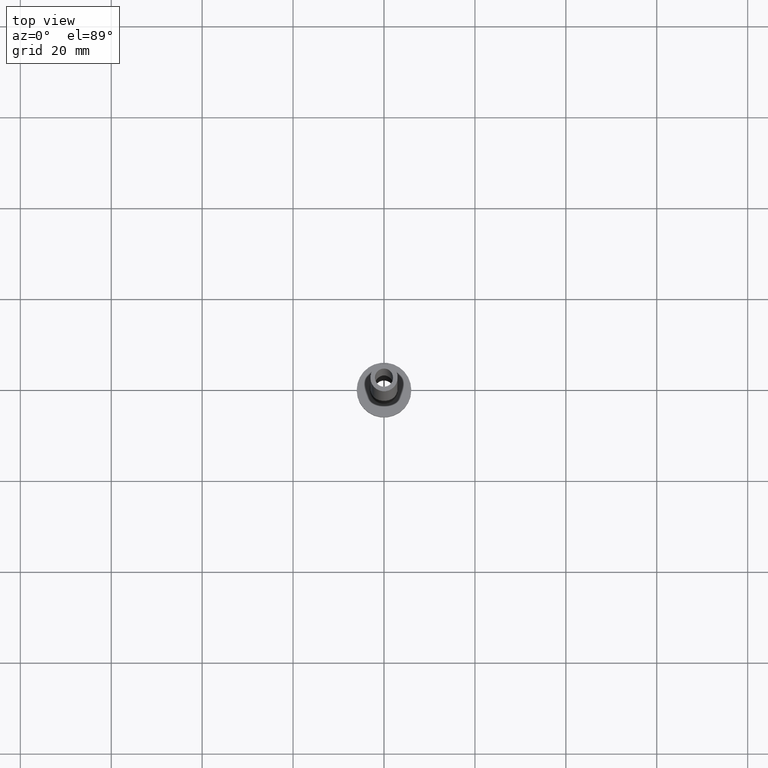
[diagram: clean part render]
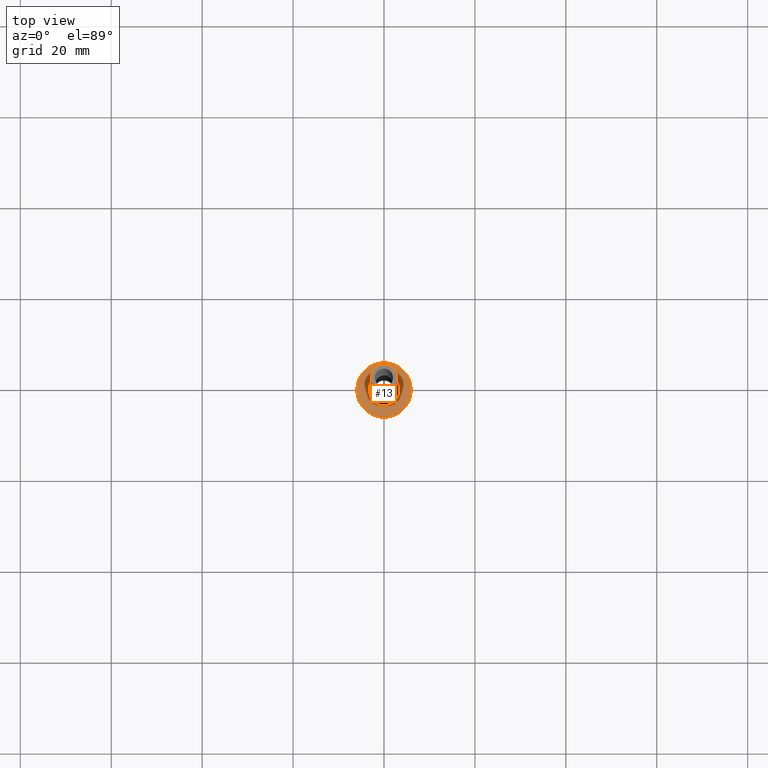
[diagram: same view with one face highlighted and labeled with its STEP entity id]
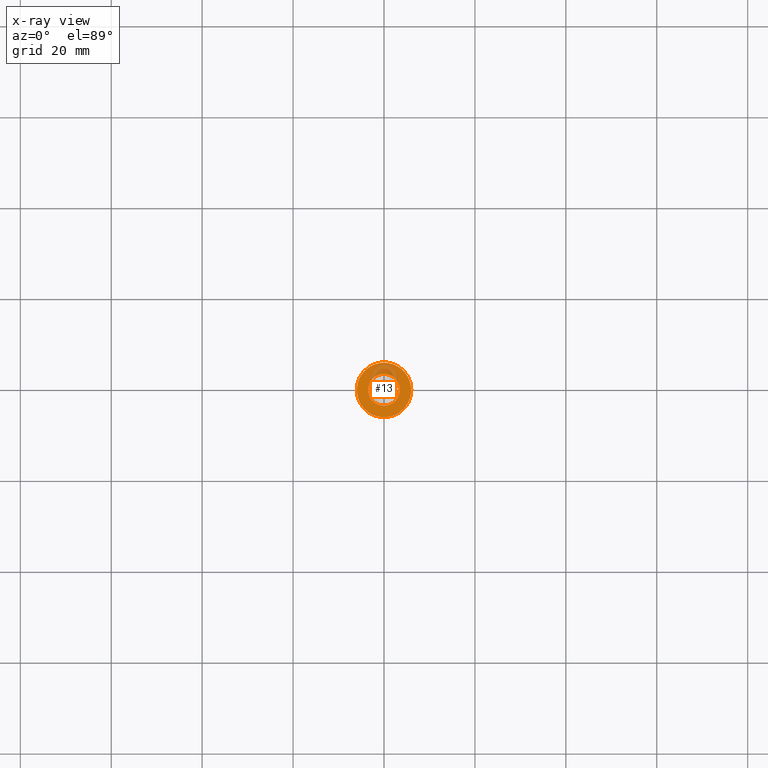
[diagram: x-ray of the same camera — body ghosted, the highlighted face saturated]
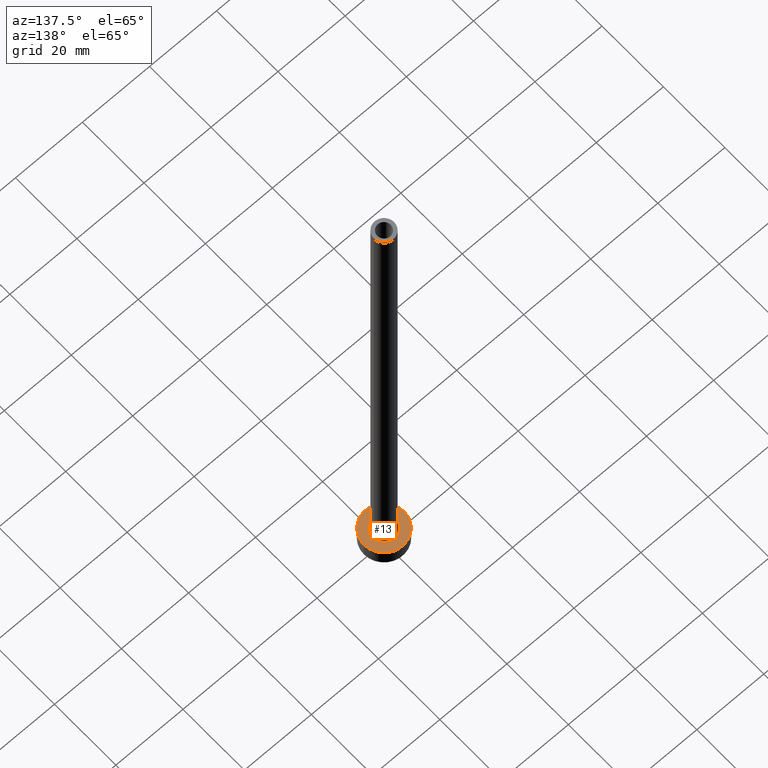
[diagram: same view with one face highlighted and labeled with its STEP entity id]
A machine part, top view. The second image highlights one B-rep face of the part: STEP entity #13.
The next image is the same camera in x-ray: the body ghosted, the highlighted face saturated — about 17% of this face is hidden behind the body in this view.
A second angle (auxiliary view) of the same face is appended — the face is thin or edge-on in the first view.
In plain terms, the highlighted planar face has unit normal (0, 0, 1).
Its self-contained STEP definition (entity closure, byte-faithful):
#6 = DIRECTION ( 'NONE',  ( 0.000000000000000000, 0.000000000000000000, 1.000000000000000000 ) ) ;
#9 = EDGE_CURVE ( 'NONE', #208, #201, #327, .T. ) ;
#13 = ADVANCED_FACE ( 'NONE', ( #334, #300 ), #442, .T. ) ;
#17 = ORIENTED_EDGE ( 'NONE', *, *, #31, .T. ) ;
#31 = EDGE_CURVE ( 'NONE', #275, #448, #247, .T. ) ;
#55 = DIRECTION ( 'NONE',  ( 1.000000000000000000, 0.000000000000000000, 0.000000000000000000 ) ) ;
#84 = CARTESIAN_POINT ( 'NONE',  ( 0.000000000000000000, 0.000000000000000000, 5.000000000000000000 ) ) ;
#103 = EDGE_LOOP ( 'NONE', ( #17, #216 ) ) ;
#106 = CARTESIAN_POINT ( 'NONE',  ( -6.000000000000000888, 0.000000000000000000, 5.000000000000000000 ) ) ;
#165 = DIRECTION ( 'NONE',  ( -0.000000000000000000, -0.000000000000000000, -1.000000000000000000 ) ) ;
#173 = DIRECTION ( 'NONE',  ( 1.000000000000000000, 0.000000000000000000, 0.000000000000000000 ) ) ;
#176 = ORIENTED_EDGE ( 'NONE', *, *, #9, .T. ) ;
#201 = VERTEX_POINT ( 'NONE', #415 ) ;
#208 = VERTEX_POINT ( 'NONE', #212 ) ;
#212 = CARTESIAN_POINT ( 'NONE',  ( -3.500000000000000444, 4.286263797015737088E-16, 5.000000000000002665 ) ) ;
#213 = EDGE_LOOP ( 'NONE', ( #418, #176 ) ) ;
#216 = ORIENTED_EDGE ( 'NONE', *, *, #441, .T. ) ;
#230 = CARTESIAN_POINT ( 'NONE',  ( 0.000000000000000000, 0.000000000000000000, 5.000000000000000000 ) ) ;
#231 = EDGE_CURVE ( 'NONE', #201, #208, #397, .T. ) ;
#245 = DIRECTION ( 'NONE',  ( -0.000000000000000000, -0.000000000000000000, -1.000000000000000000 ) ) ;
#247 = CIRCLE ( 'NONE', #382, 6.000000000000000888 ) ;
#251 = DIRECTION ( 'NONE',  ( 0.000000000000000000, 0.000000000000000000, 1.000000000000000000 ) ) ;
#256 = CIRCLE ( 'NONE', #430, 6.000000000000000888 ) ;
#259 = CARTESIAN_POINT ( 'NONE',  ( 6.000000000000000888, 7.347880794884120722E-16, 5.000000000000000000 ) ) ;
#275 = VERTEX_POINT ( 'NONE', #106 ) ;
#287 = AXIS2_PLACEMENT_3D ( 'NONE', #230, #165, #55 ) ;
#300 = FACE_OUTER_BOUND ( 'NONE', #103, .T. ) ;
#308 = DIRECTION ( 'NONE',  ( 1.000000000000000000, 0.000000000000000000, -0.000000000000000000 ) ) ;
#327 = CIRCLE ( 'NONE', #287, 3.500000000000000444 ) ;
#334 = FACE_BOUND ( 'NONE', #213, .T. ) ;
#353 = CARTESIAN_POINT ( 'NONE',  ( 0.000000000000000000, 0.000000000000000000, 5.000000000000000000 ) ) ;
#366 = AXIS2_PLACEMENT_3D ( 'NONE', #353, #245, #373 ) ;
#373 = DIRECTION ( 'NONE',  ( 1.000000000000000000, 0.000000000000000000, 0.000000000000000000 ) ) ;
#382 = AXIS2_PLACEMENT_3D ( 'NONE', #455, #251, #173 ) ;
#391 = DIRECTION ( 'NONE',  ( 0.000000000000000000, 0.000000000000000000, 1.000000000000000000 ) ) ;
#397 = CIRCLE ( 'NONE', #366, 3.500000000000000444 ) ;
#402 = CARTESIAN_POINT ( 'NONE',  ( 0.000000000000000000, 0.000000000000000000, 5.000000000000000000 ) ) ;
#415 = CARTESIAN_POINT ( 'NONE',  ( 3.500000000000000444, 0.000000000000000000, 5.000000000000002665 ) ) ;
#418 = ORIENTED_EDGE ( 'NONE', *, *, #231, .T. ) ;
#430 = AXIS2_PLACEMENT_3D ( 'NONE', #84, #6, #431 ) ;
#431 = DIRECTION ( 'NONE',  ( 1.000000000000000000, 0.000000000000000000, 0.000000000000000000 ) ) ;
#441 = EDGE_CURVE ( 'NONE', #448, #275, #256, .T. ) ;
#442 = PLANE ( 'NONE',  #453 ) ;
#448 = VERTEX_POINT ( 'NONE', #259 ) ;
#453 = AXIS2_PLACEMENT_3D ( 'NONE', #402, #391, #308 ) ;
#455 = CARTESIAN_POINT ( 'NONE',  ( 0.000000000000000000, 0.000000000000000000, 5.000000000000000000 ) ) ;